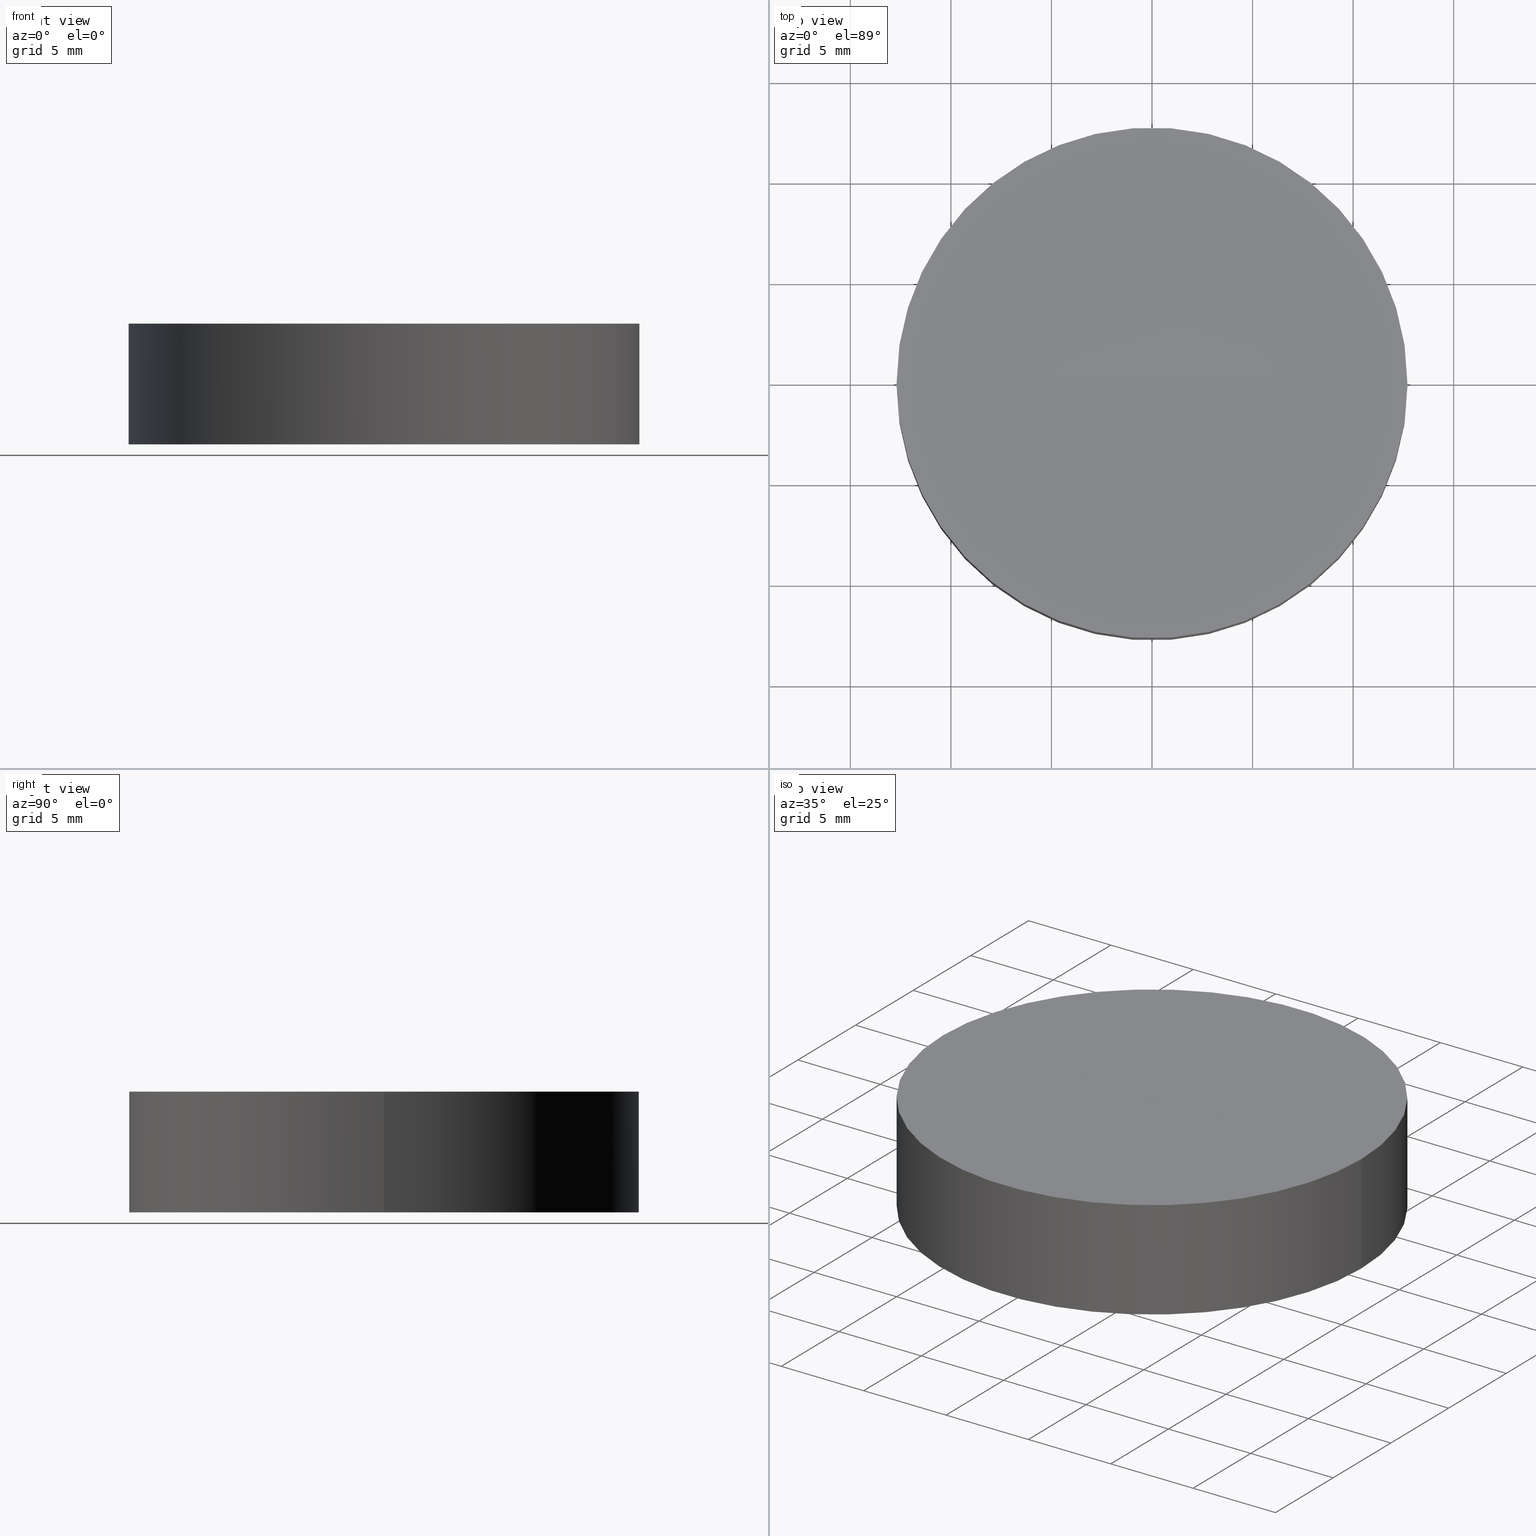
[diagram: canonical four-view strip — front | top / right | iso, engineering-drawing reading convention]
A machine part, canonical four-view strip (front | top / right | iso — engineering-drawing reading convention). The complete STEP part file that produces these views, byte-faithful:
ISO-10303-21;
HEADER;
FILE_DESCRIPTION (( 'STEP AP203' ),
    '1' );
FILE_NAME ('010-0225E_N-BK7_PCV_window.STEP',
    '2021-02-25T11:21:18',
    ( '' ),
    ( '' ),
    'SwSTEP 2.0',
    'SolidWorks 2019',
    '' );
FILE_SCHEMA (( 'CONFIG_CONTROL_DESIGN' ));
ENDSEC;

DATA;
#1 = APPROVAL_PERSON_ORGANIZATION ( #38, #137, #143 ) ;
#2 = DIRECTION ( 'NONE',  ( -0.000000000000000000, -0.000000000000000000, -1.000000000000000000 ) ) ;
#3 = CALENDAR_DATE ( 2021, 25, 2 ) ;
#4 = CC_DESIGN_DATE_AND_TIME_ASSIGNMENT ( #179, #101, ( #91 ) ) ;
#5 = ORIENTED_EDGE ( 'NONE', *, *, #79, .F. ) ;
#6 = AXIS2_PLACEMENT_3D ( 'NONE', #30, #199, #136 ) ;
#7 = CC_DESIGN_SECURITY_CLASSIFICATION ( #91, ( #151 ) ) ;
#8 = PERSON_AND_ORGANIZATION ( #172, #48 ) ;
#9 = CARTESIAN_POINT ( 'NONE',  ( 2.463307335887066074E-13, 0.000000000000000000, 2005.959677093515666 ) ) ;
#10 =( LENGTH_UNIT ( ) NAMED_UNIT ( * ) SI_UNIT ( .MILLI., .METRE. ) );
#11 = DIRECTION ( 'NONE',  ( -0.000000000000000000, -0.000000000000000000, -1.000000000000000000 ) ) ;
#12 = CARTESIAN_POINT ( 'NONE',  ( 12.70000000001259721, 1.555301434918681247E-15, 6.000000000000005329 ) ) ;
#13 = CARTESIAN_POINT ( 'NONE',  ( 3.687954135034419575E-13, 0.000000000000000000, 5.959677093515747259 ) ) ;
#14 = ADVANCED_BREP_SHAPE_REPRESENTATION ( '010-0225E_N-BK7_PCV_window', ( #188, #83 ), #158 ) ;
#15 = CLOSED_SHELL ( 'NONE', ( #166, #94, #167, #128, #123 ) ) ;
#16 = APPROVAL ( #34, 'UNSPECIFIED' ) ;
#17 = DATE_AND_TIME ( #189, #56 ) ;
#18 = ORIENTED_EDGE ( 'NONE', *, *, #79, .T. ) ;
#19 = CC_DESIGN_PERSON_AND_ORGANIZATION_ASSIGNMENT ( #65, #126, ( #151 ) ) ;
#20 = FACE_OUTER_BOUND ( 'NONE', #157, .T. ) ;
#21 = SECURITY_CLASSIFICATION_LEVEL ( 'unclassified' ) ;
#22 = LINE ( 'NONE', #58, #97 ) ;
#23 = PERSON_AND_ORGANIZATION_ROLE ( 'design_supplier' ) ;
#24 =( NAMED_UNIT ( * ) SI_UNIT ( $, .STERADIAN. ) SOLID_ANGLE_UNIT ( ) );
#25 = DIRECTION ( 'NONE',  ( 1.000000000000000000, 1.224646799147353207E-16, 0.000000000000000000 ) ) ;
#26 = ORIENTED_EDGE ( 'NONE', *, *, #186, .T. ) ;
#27 = DIRECTION ( 'NONE',  ( 1.000000000000000000, 0.000000000000000000, 0.000000000000000000 ) ) ;
#28 = CARTESIAN_POINT ( 'NONE',  ( 0.000000000000000000, 0.000000000000000000, 6.000000000000000000 ) ) ;
#29 = CIRCLE ( 'NONE', #168, 12.70000000001234852 ) ;
#30 = CARTESIAN_POINT ( 'NONE',  ( 0.000000000000000000, 0.000000000000000000, 0.000000000000000000 ) ) ;
#31 = CC_DESIGN_PERSON_AND_ORGANIZATION_ASSIGNMENT ( #32, #98, ( #35 ) ) ;
#32 = PERSON_AND_ORGANIZATION ( #172, #48 ) ;
#33 = AXIS2_PLACEMENT_3D ( 'NONE', #40, #190, #25 ) ;
#34 = APPROVAL_STATUS ( 'not_yet_approved' ) ;
#35 = PRODUCT_DEFINITION ( 'UNKNOWN', '', #151, #153 ) ;
#36 = ORIENTED_EDGE ( 'NONE', *, *, #112, .F. ) ;
#37 = APPROVAL ( #146, 'UNSPECIFIED' ) ;
#38 = PERSON_AND_ORGANIZATION ( #172, #48 ) ;
#39 = EDGE_LOOP ( 'NONE', ( #36, #18, #43, #110 ) ) ;
#40 = CARTESIAN_POINT ( 'NONE',  ( 2.463307335887066074E-13, 0.000000000000000000, 2005.959677093515666 ) ) ;
#41 = VERTEX_POINT ( 'NONE', #180 ) ;
#42 = VECTOR ( 'NONE', #115, 1000.000000000000000 ) ;
#43 = ORIENTED_EDGE ( 'NONE', *, *, #73, .T. ) ;
#44 = FACE_OUTER_BOUND ( 'NONE', #117, .T. ) ;
#45 = EDGE_CURVE ( 'NONE', #145, #141, #125, .T. ) ;
#46 = AXIS2_PLACEMENT_3D ( 'NONE', #71, #133, #57 ) ;
#47 = CYLINDRICAL_SURFACE ( 'NONE', #86, 12.69999999999999929 ) ;
#48 = ORGANIZATION ( 'UNSPECIFIED', 'UNSPECIFIED', '' ) ;
#49 = DIRECTION ( 'NONE',  ( 1.000000000000000000, 0.000000000000000000, 0.000000000000000000 ) ) ;
#50 = COORDINATED_UNIVERSAL_TIME_OFFSET ( 2, 0, .AHEAD. ) ;
#51 = APPROVAL_ROLE ( '' ) ;
#52 = AXIS2_PLACEMENT_3D ( 'NONE', #138, #2, #64 ) ;
#53 = SHAPE_DEFINITION_REPRESENTATION ( #163, #14 ) ;
#54 = ORIENTED_EDGE ( 'NONE', *, *, #73, .F. ) ;
#55 = APPROVAL_STATUS ( 'not_yet_approved' ) ;
#56 = LOCAL_TIME ( 13, 21, 18.00000000000000000, #187 ) ;
#57 = DIRECTION ( 'NONE',  ( 1.000000000000000000, 0.000000000000000000, 0.000000000000000000 ) ) ;
#58 = CARTESIAN_POINT ( 'NONE',  ( 12.69999999999999929, 1.555301434917138433E-15, 6.000000000000000000 ) ) ;
#59 = PLANE ( 'NONE',  #6 ) ;
#60 = EDGE_CURVE ( 'NONE', #41, #162, #111, .T. ) ;
#61 = SPHERICAL_SURFACE ( 'NONE', #122, 2000.000000000000000 ) ;
#62 = APPLICATION_PROTOCOL_DEFINITION ( 'international standard', 'config_control_design', 1994, #161 ) ;
#63 = CC_DESIGN_APPROVAL ( #37, ( #151 ) ) ;
#64 = DIRECTION ( 'NONE',  ( 1.000000000000000000, 0.000000000000000000, 0.000000000000000000 ) ) ;
#65 = PERSON_AND_ORGANIZATION ( #172, #48 ) ;
#66 = CARTESIAN_POINT ( 'NONE',  ( 2.463307335887066074E-13, 0.000000000000000000, 2005.959677093515666 ) ) ;
#67 = ORIENTED_EDGE ( 'NONE', *, *, #112, .T. ) ;
#68 = DATE_AND_TIME ( #3, #194 ) ;
#69 = CC_DESIGN_DATE_AND_TIME_ASSIGNMENT ( #106, #118, ( #35 ) ) ;
#70 = ORIENTED_EDGE ( 'NONE', *, *, #60, .T. ) ;
#71 = CARTESIAN_POINT ( 'NONE',  ( 0.000000000000000000, 0.000000000000000000, 0.000000000000000000 ) ) ;
#72 = ORIENTED_EDGE ( 'NONE', *, *, #186, .F. ) ;
#73 = EDGE_CURVE ( 'NONE', #41, #145, #195, .T. ) ;
#74 = DIRECTION ( 'NONE',  ( -0.000000000000000000, -0.000000000000000000, -1.000000000000000000 ) ) ;
#75 = APPROVAL_PERSON_ORGANIZATION ( #176, #16, #51 ) ;
#76 = PERSON_AND_ORGANIZATION ( #172, #48 ) ;
#77 = AXIS2_PLACEMENT_3D ( 'NONE', #66, #130, #113 ) ;
#78 = DIRECTION ( 'NONE',  ( 0.000000000000000000, 0.000000000000000000, 1.000000000000000000 ) ) ;
#79 = EDGE_CURVE ( 'NONE', #135, #41, #29, .T. ) ;
#80 = DIRECTION ( 'NONE',  ( -1.000000000000000000, 0.000000000000000000, 0.000000000000000000 ) ) ;
#81 = CC_DESIGN_APPROVAL ( #137, ( #91 ) ) ;
#82 = APPROVAL_DATE_TIME ( #17, #137 ) ;
#83 = AXIS2_PLACEMENT_3D ( 'NONE', #154, #78, #92 ) ;
#84 = ORIENTED_EDGE ( 'NONE', *, *, #45, .F. ) ;
#85 = CARTESIAN_POINT ( 'NONE',  ( 0.000000000000000000, 0.000000000000000000, 6.000000000000000000 ) ) ;
#86 = AXIS2_PLACEMENT_3D ( 'NONE', #28, #74, #80 ) ;
#87 = ORIENTED_EDGE ( 'NONE', *, *, #90, .T. ) ;
#88 = EDGE_LOOP ( 'NONE', ( #84, #142 ) ) ;
#89 = DIRECTION ( 'NONE',  ( 1.000000000000000000, 0.000000000000000000, 0.000000000000000000 ) ) ;
#90 = EDGE_CURVE ( 'NONE', #135, #162, #184, .T. ) ;
#91 = SECURITY_CLASSIFICATION ( '', '', #21 ) ;
#92 = DIRECTION ( 'NONE',  ( 1.000000000000000000, 0.000000000000000000, 0.000000000000000000 ) ) ;
#93 = DIRECTION ( 'NONE',  ( 0.000000000000000000, 0.000000000000000000, 1.000000000000000000 ) ) ;
#94 = ADVANCED_FACE ( 'NONE', ( #20 ), #197, .T. ) ;
#95 = APPROVAL_DATE_TIME ( #99, #16 ) ;
#96 = APPLICATION_PROTOCOL_DEFINITION ( 'international standard', 'config_control_design', 1994, #196 ) ;
#97 = VECTOR ( 'NONE', #182, 1000.000000000000000 ) ;
#98 = PERSON_AND_ORGANIZATION_ROLE ( 'creator' ) ;
#99 = DATE_AND_TIME ( #178, #185 ) ;
#100 = ORIENTED_EDGE ( 'NONE', *, *, #60, .F. ) ;
#101 = DATE_TIME_ROLE ( 'classification_date' ) ;
#102 = CARTESIAN_POINT ( 'NONE',  ( 2.463307335887066074E-13, 0.000000000000000000, 6.000000000000005329 ) ) ;
#103 = DIRECTION ( 'NONE',  ( -0.000000000000000000, -0.000000000000000000, -1.000000000000000000 ) ) ;
#104 = FACE_OUTER_BOUND ( 'NONE', #131, .T. ) ;
#105 = CARTESIAN_POINT ( 'NONE',  ( -12.69999999999999929, 0.000000000000000000, 6.000000000000000000 ) ) ;
#106 = DATE_AND_TIME ( #169, #124 ) ;
#107 = COORDINATED_UNIVERSAL_TIME_OFFSET ( 2, 0, .AHEAD. ) ;
#108 = CIRCLE ( 'NONE', #52, 12.70000000001234852 ) ;
#109 = APPROVAL_DATE_TIME ( #68, #37 ) ;
#110 = ORIENTED_EDGE ( 'NONE', *, *, #45, .T. ) ;
#111 = CIRCLE ( 'NONE', #33, 2000.000000000000000 ) ;
#112 = EDGE_CURVE ( 'NONE', #135, #141, #22, .T. ) ;
#113 = DIRECTION ( 'NONE',  ( 0.000000000000000000, 0.000000000000000000, 1.000000000000000000 ) ) ;
#114 = APPROVAL_PERSON_ORGANIZATION ( #8, #37, #139 ) ;
#115 = DIRECTION ( 'NONE',  ( -0.000000000000000000, -0.000000000000000000, -1.000000000000000000 ) ) ;
#116 = COORDINATED_UNIVERSAL_TIME_OFFSET ( 2, 0, .AHEAD. ) ;
#117 = EDGE_LOOP ( 'NONE', ( #72, #70, #164 ) ) ;
#118 = DATE_TIME_ROLE ( 'creation_date' ) ;
#119 = PRODUCT ( '010-0225E_N-BK7_PCV_window', '010-0225E_N-BK7_PCV_window', '', ( #171 ) ) ;
#120 = CARTESIAN_POINT ( 'NONE',  ( 12.69999999999999929, 1.555301434917138433E-15, 0.000000000000000000 ) ) ;
#121 = DIRECTION ( 'NONE',  ( 0.000000000000000000, -1.000000000000000000, -0.000000000000000000 ) ) ;
#122 = AXIS2_PLACEMENT_3D ( 'NONE', #148, #121, #89 ) ;
#123 = ADVANCED_FACE ( 'NONE', ( #104 ), #147, .F. ) ;
#124 = LOCAL_TIME ( 13, 21, 18.00000000000000000, #107 ) ;
#125 = CIRCLE ( 'NONE', #46, 12.69999999999999929 ) ;
#126 = PERSON_AND_ORGANIZATION_ROLE ( 'creator' ) ;
#127 = PERSON_AND_ORGANIZATION ( #172, #48 ) ;
#128 = ADVANCED_FACE ( 'NONE', ( #149 ), #59, .F. ) ;
#129 = PRODUCT_RELATED_PRODUCT_CATEGORY ( 'detail', '', ( #119 ) ) ;
#130 = DIRECTION ( 'NONE',  ( 0.000000000000000000, 1.000000000000000000, -0.000000000000000000 ) ) ;
#131 = EDGE_LOOP ( 'NONE', ( #100, #5, #87 ) ) ;
#132 =( NAMED_UNIT ( * ) PLANE_ANGLE_UNIT ( ) SI_UNIT ( $, .RADIAN. ) );
#133 = DIRECTION ( 'NONE',  ( 0.000000000000000000, 0.000000000000000000, 1.000000000000000000 ) ) ;
#134 = DIRECTION ( 'NONE',  ( 0.000000000000000000, -1.000000000000000000, -0.000000000000000000 ) ) ;
#135 = VERTEX_POINT ( 'NONE', #12 ) ;
#136 = DIRECTION ( 'NONE',  ( 1.000000000000000000, 0.000000000000000000, -0.000000000000000000 ) ) ;
#137 = APPROVAL ( #55, 'UNSPECIFIED' ) ;
#138 = CARTESIAN_POINT ( 'NONE',  ( 2.463307335887066074E-13, 0.000000000000000000, 6.000000000000005329 ) ) ;
#139 = APPROVAL_ROLE ( '' ) ;
#140 = COORDINATED_UNIVERSAL_TIME_OFFSET ( 2, 0, .AHEAD. ) ;
#141 = VERTEX_POINT ( 'NONE', #120 ) ;
#142 = ORIENTED_EDGE ( 'NONE', *, *, #174, .F. ) ;
#143 = APPROVAL_ROLE ( '' ) ;
#144 = AXIS2_PLACEMENT_3D ( 'NONE', #9, #134, #27 ) ;
#145 = VERTEX_POINT ( 'NONE', #183 ) ;
#146 = APPROVAL_STATUS ( 'not_yet_approved' ) ;
#147 = SPHERICAL_SURFACE ( 'NONE', #144, 2000.000000000000000 ) ;
#148 = CARTESIAN_POINT ( 'NONE',  ( 2.463307335887066074E-13, 0.000000000000000000, 2005.959677093515666 ) ) ;
#149 = FACE_OUTER_BOUND ( 'NONE', #88, .T. ) ;
#150 = CC_DESIGN_PERSON_AND_ORGANIZATION_ASSIGNMENT ( #156, #192, ( #91 ) ) ;
#151 = PRODUCT_DEFINITION_FORMATION_WITH_SPECIFIED_SOURCE ( 'ANY', '', #119, .NOT_KNOWN. ) ;
#152 = PERSON_AND_ORGANIZATION_ROLE ( 'design_owner' ) ;
#153 = DESIGN_CONTEXT ( 'detailed design', #196, 'design' ) ;
#154 = CARTESIAN_POINT ( 'NONE',  ( 0.000000000000000000, 0.000000000000000000, 0.000000000000000000 ) ) ;
#155 = CC_DESIGN_PERSON_AND_ORGANIZATION_ASSIGNMENT ( #76, #152, ( #119 ) ) ;
#156 = PERSON_AND_ORGANIZATION ( #172, #48 ) ;
#157 = EDGE_LOOP ( 'NONE', ( #26, #67, #193, #54 ) ) ;
#158 =( GEOMETRIC_REPRESENTATION_CONTEXT ( 3 ) GLOBAL_UNCERTAINTY_ASSIGNED_CONTEXT ( ( #175 ) ) GLOBAL_UNIT_ASSIGNED_CONTEXT ( ( #10, #132, #24 ) ) REPRESENTATION_CONTEXT ( 'NONE', 'WORKASPACE' ) );
#159 = DIRECTION ( 'NONE',  ( 1.000000000000000000, 0.000000000000000000, 0.000000000000000000 ) ) ;
#160 = DIRECTION ( 'NONE',  ( -1.000000000000000000, 0.000000000000000000, 0.000000000000000000 ) ) ;
#161 = APPLICATION_CONTEXT ( 'configuration controlled 3d designs of mechanical parts and assemblies' ) ;
#162 = VERTEX_POINT ( 'NONE', #13 ) ;
#163 = PRODUCT_DEFINITION_SHAPE ( 'NONE', 'NONE',  #35 ) ;
#164 = ORIENTED_EDGE ( 'NONE', *, *, #90, .F. ) ;
#165 = FACE_OUTER_BOUND ( 'NONE', #39, .T. ) ;
#166 = ADVANCED_FACE ( 'NONE', ( #44 ), #61, .F. ) ;
#167 = ADVANCED_FACE ( 'NONE', ( #165 ), #47, .T. ) ;
#168 = AXIS2_PLACEMENT_3D ( 'NONE', #102, #11, #159 ) ;
#169 = CALENDAR_DATE ( 2021, 25, 2 ) ;
#170 = CC_DESIGN_APPROVAL ( #16, ( #35 ) ) ;
#171 = MECHANICAL_CONTEXT ( 'NONE', #161, 'mechanical' ) ;
#172 = PERSON ( 'UNSPECIFIED', 'UNSPECIFIED', 'UNSPECIFIED', ('UNSPECIFIED'), ('UNSPECIFIED'), ('UNSPECIFIED') ) ;
#173 = CARTESIAN_POINT ( 'NONE',  ( 0.000000000000000000, 0.000000000000000000, 0.000000000000000000 ) ) ;
#174 = EDGE_CURVE ( 'NONE', #141, #145, #177, .T. ) ;
#175 = UNCERTAINTY_MEASURE_WITH_UNIT (LENGTH_MEASURE( 1.000000000000000082E-05 ), #10, 'distance_accuracy_value', 'NONE');
#176 = PERSON_AND_ORGANIZATION ( #172, #48 ) ;
#177 = CIRCLE ( 'NONE', #200, 12.69999999999999929 ) ;
#178 = CALENDAR_DATE ( 2021, 25, 2 ) ;
#179 = DATE_AND_TIME ( #181, #198 ) ;
#180 = CARTESIAN_POINT ( 'NONE',  ( -12.70000000001210338, 0.000000000000000000, 6.000000000000005329 ) ) ;
#181 = CALENDAR_DATE ( 2021, 25, 2 ) ;
#182 = DIRECTION ( 'NONE',  ( -0.000000000000000000, -0.000000000000000000, -1.000000000000000000 ) ) ;
#183 = CARTESIAN_POINT ( 'NONE',  ( -12.69999999999999929, 0.000000000000000000, 0.000000000000000000 ) ) ;
#184 = CIRCLE ( 'NONE', #77, 2000.000000000000455 ) ;
#185 = LOCAL_TIME ( 13, 21, 18.00000000000000000, #50 ) ;
#186 = EDGE_CURVE ( 'NONE', #41, #135, #108, .T. ) ;
#187 = COORDINATED_UNIVERSAL_TIME_OFFSET ( 2, 0, .AHEAD. ) ;
#188 = MANIFOLD_SOLID_BREP ( 'Cut-Revolve1', #15 ) ;
#189 = CALENDAR_DATE ( 2021, 25, 2 ) ;
#190 = DIRECTION ( 'NONE',  ( 1.224646799147353207E-16, -1.000000000000000000, 0.000000000000000000 ) ) ;
#191 = AXIS2_PLACEMENT_3D ( 'NONE', #85, #103, #160 ) ;
#192 = PERSON_AND_ORGANIZATION_ROLE ( 'classification_officer' ) ;
#193 = ORIENTED_EDGE ( 'NONE', *, *, #174, .T. ) ;
#194 = LOCAL_TIME ( 13, 21, 18.00000000000000000, #116 ) ;
#195 = LINE ( 'NONE', #105, #42 ) ;
#196 = APPLICATION_CONTEXT ( 'configuration controlled 3d designs of mechanical parts and assemblies' ) ;
#197 = CYLINDRICAL_SURFACE ( 'NONE', #191, 12.69999999999999929 ) ;
#198 = LOCAL_TIME ( 13, 21, 18.00000000000000000, #140 ) ;
#199 = DIRECTION ( 'NONE',  ( 0.000000000000000000, 0.000000000000000000, 1.000000000000000000 ) ) ;
#200 = AXIS2_PLACEMENT_3D ( 'NONE', #173, #93, #49 ) ;
#201 = CC_DESIGN_PERSON_AND_ORGANIZATION_ASSIGNMENT ( #127, #23, ( #151 ) ) ;
ENDSEC;
END-ISO-10303-21;
